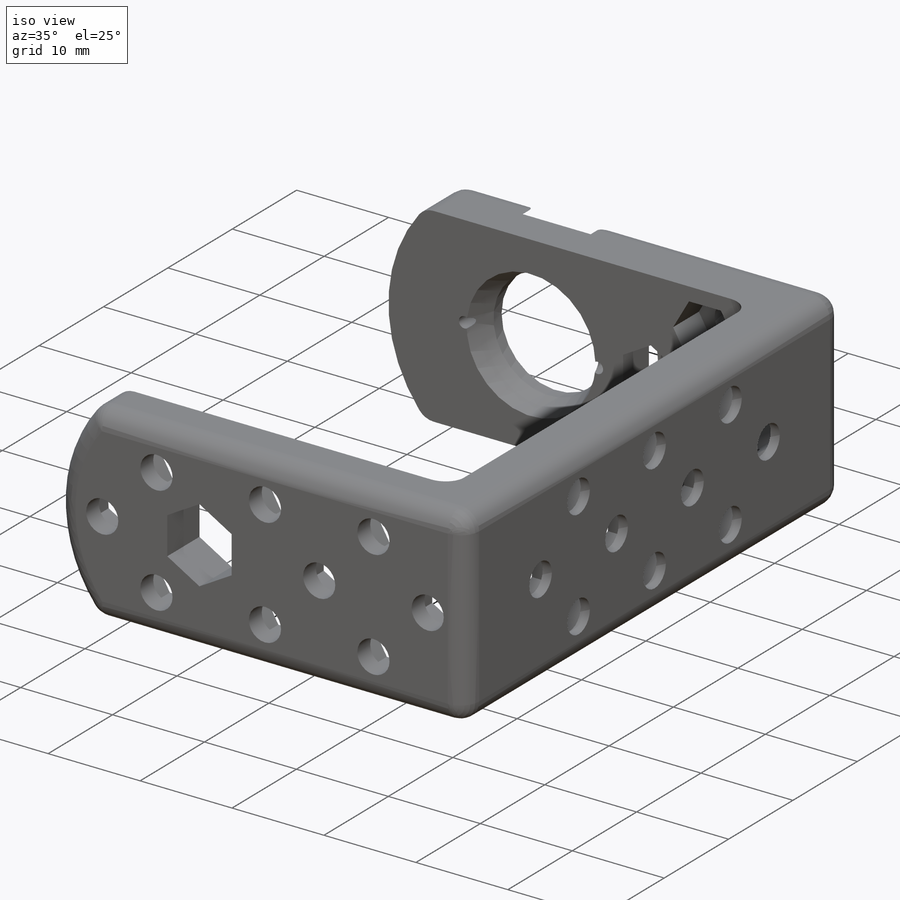
[diagram: iso view]
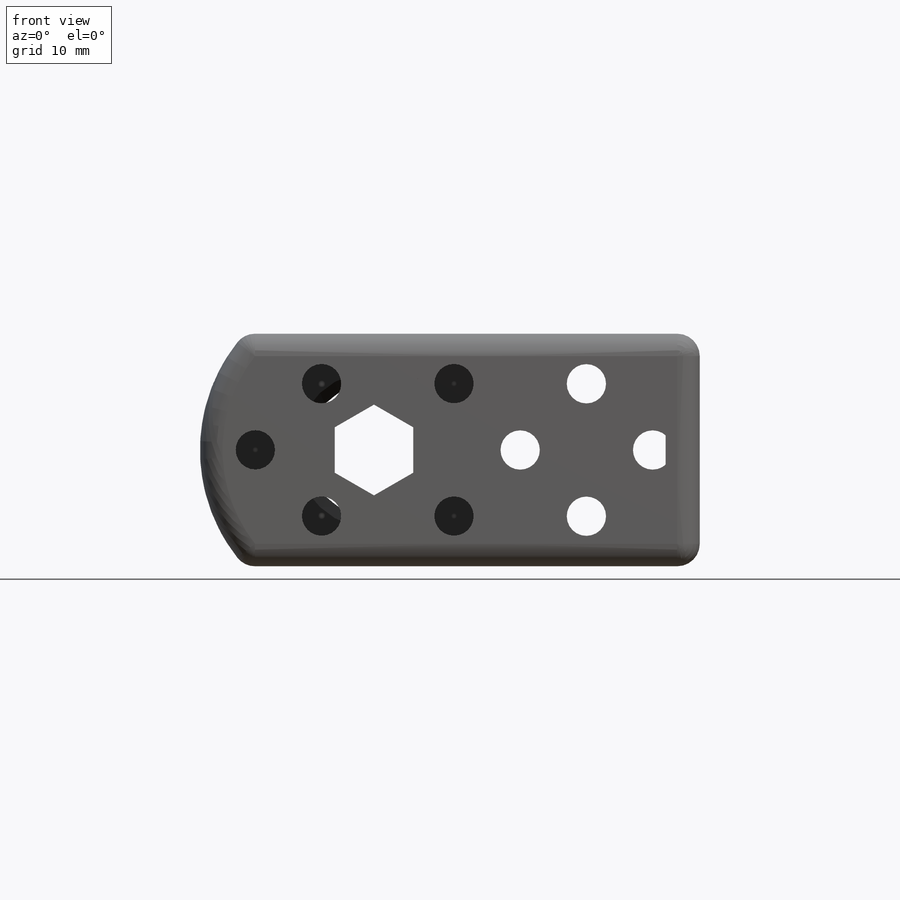
[diagram: front view]
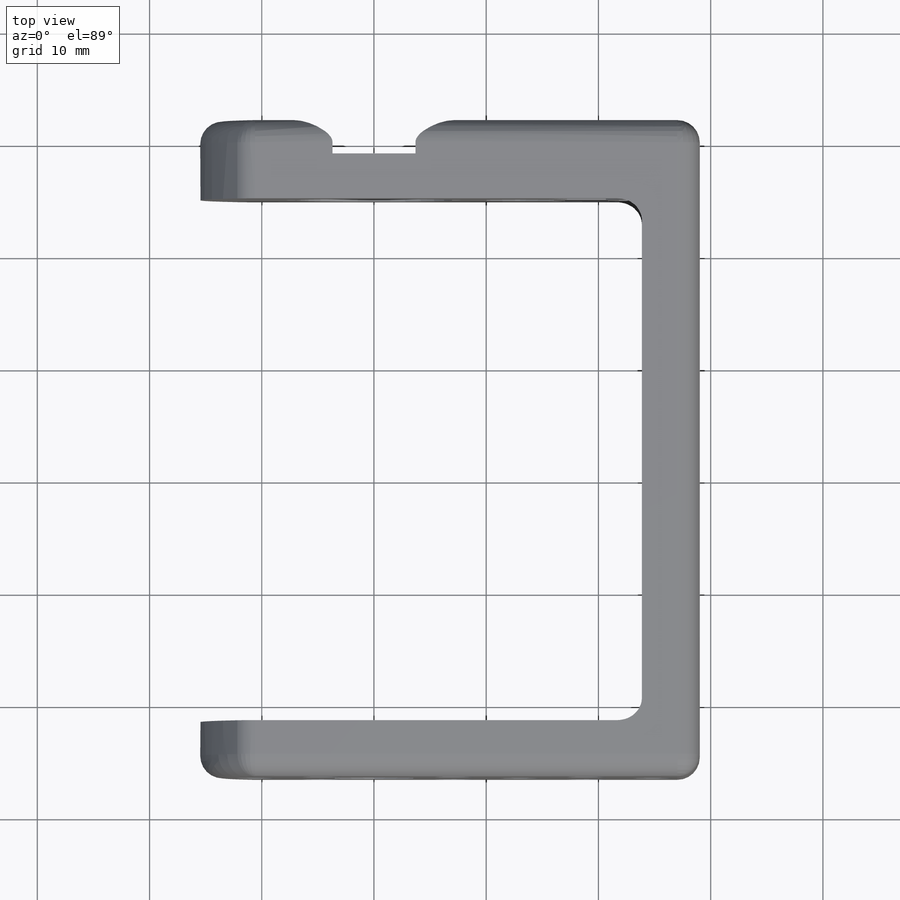
[diagram: top view]
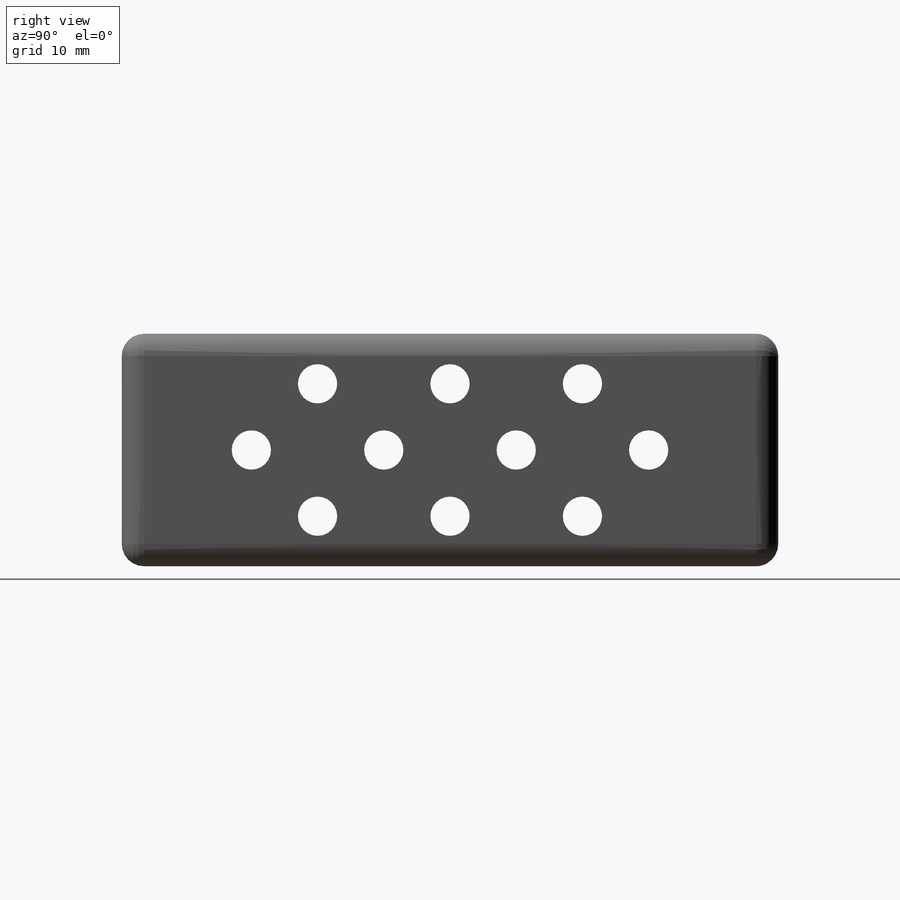
[diagram: right view]
SOLIDWORKS PART (.sldprt)
format: sldprt  version: not decoded by parser v0  size: 904,704 bytes
history: native  units: mm
features: sketch x14, cut_extrude x10, plane x5, extrude x4, material x1, fillet x1 (+10 scaffold rows collapsed)
feature tree (45):
  scaffold x10  (default folders/planes/origin — collapsed)
  material  "Материал <не указан>"
  plane  "Спереди"
  plane  "Сверху"
  plane  "Справа"
  sketch  "Эскиз1"  dims[c1.D1=22.0mm c1.D2=12.0mm c1.D3=21.0mm c1.D4=2.0mm c2.D4=2.0mm c3.D4=2.0mm c4.D4=2.0mm c5.D4=2.0mm c6.D4=2.0mm c7.D4=2.0mm c8.D4=2.0mm c9.D4=2.0mm c10.D4=2.0mm c10.D5=~20.39249mm c10.D6=2.0mm c10.D7=0.5mm c11.D4=~26.024184mm c11.D3=5.0mm c12.D4=~7.631694mm c12.D5=3.0mm c12.D7=~20.721639mm]
  extrude  "Бобышка-Вытянуть1"  Depth=5mm
  extrude  "Бобышка-Вытянуть4"  [1 undecoded]
  sketch  "Эскиз1<5>"
  extrude  "Бобышка-Вытянуть5"  [1 undecoded]
  sketch  "Эскиз1<7>"  dims[D1=46.5mm]
  sketch  "Эскиз2"  dims[c1.D1=5.715mm c1.D2=6.715mm c2.D1=0.5mm]
  extrude  "Бобышка-Вытянуть7"  Depth=5mm
  fillet  "Скругление1"  Radius=2mm
  sketch  "Эскиз3"
  cut_extrude  "Вырез-Вытянуть1"  [1 undecoded]
  sketch  "Эскиз4"  dims[c1.D1=3.5mm c1.D2=6.0mm c1.D11=5.5mm c1.D4=~5.89921mm c1.D5=~1.46161mm c1.D8=11.8mm c1.D9=11.8mm c1.D10=11.8mm c2.D11=~3.175426mm c2.D6=2.0 c2.D7=2.0 c2.D3=4.0]
  cut_extrude  "Вырез-Вытянуть2"  [1 undecoded]
  cut_extrude  "Вырез-Вытянуть4"  [1 undecoded]
  sketch  "Эскиз4<5>"  dims[D1=1.0mm D19=6.0mm]
  sketch  "Эскиз5"  dims[c1.D1=3.5mm c1.D2=6.0mm c1.D8=5.5mm c1.D3=5.9mm c1.D5=1.2mm c1.D7=11.8mm c2.D5=1.2mm c2.D8=~3.175426mm c2.D6=4.0 c2.D4=4.0]
  cut_extrude  "Вырез-Вытянуть5"  [1 undecoded]
  plane  "Плоскость1"
  cut_extrude  "Вырез-Вытянуть6"  [1 undecoded]
  sketch  "Эскиз5<4>"  dims[D1=3.0mm D2=3.0mm]
  sketch  "Эскиз6"
  cut_extrude  "Вырез-Вытянуть7"  [1 undecoded]
  plane  "Плоскость2"
  cut_extrude  "Вырез-Вытянуть8"  [1 undecoded]
  sketch  "Эскиз6<4>"  dims[D1=4.0mm D2=3.0mm]
  cut_extrude  "Вырез-Вытянуть9"  [1 undecoded]
  sketch  "Эскиз4<7>"  dims[D1=1.0mm D19=4.0mm]
  sketch  "Эскиз7"  dims[D1=14.0mm]
  cut_extrude  "Вырез-Вытянуть10"  Depth=3mm
  cut_extrude  "Вырез-Вытянуть11"  [1 undecoded]
  sketch  "Эскиз1<9>"  dims[D1=1.0mm]
decode coverage: 15 of 29 modeling features carry decoded parameters
note: ~ marks probable driven/reference dimensions
note: 11 parameter values undecoded
summary: no parameter record found for 11 features
note: suppression state not decoded; provenance and decode notes live in map.json
